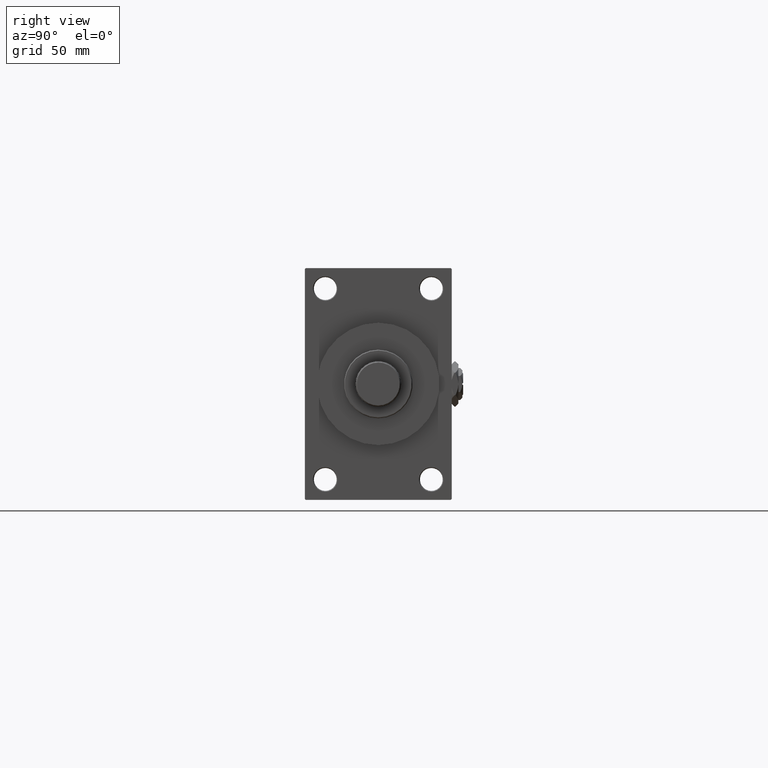
[diagram: clean part render]
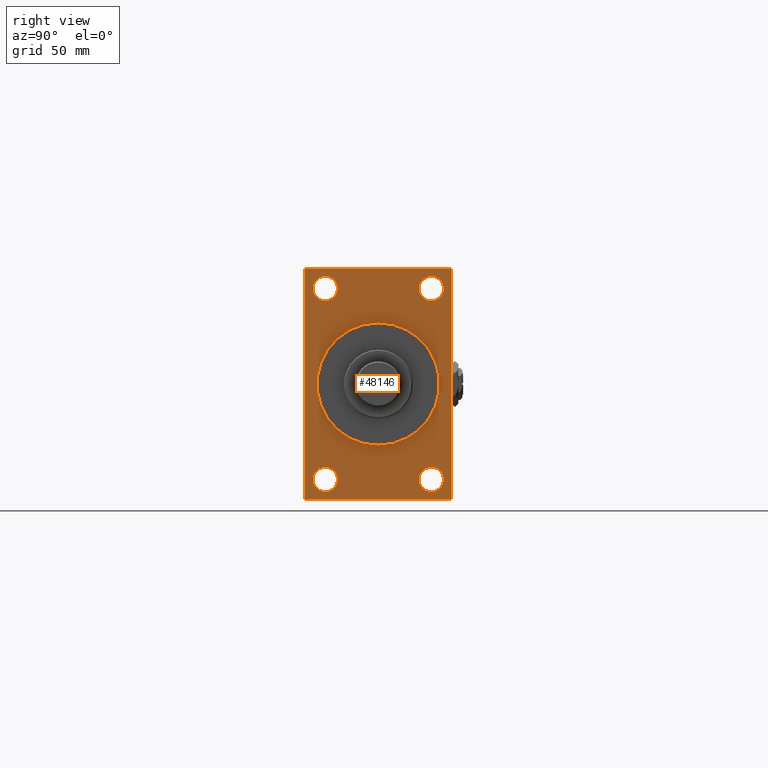
[diagram: same view with one face highlighted and labeled with its STEP entity id]
A machine part, right view. The second image highlights one B-rep face of the part: STEP entity #48146.
In plain terms, the highlighted planar face has unit normal (-1, 0, 0).
Its self-contained STEP definition (entity closure, byte-faithful):
#25 = VECTOR ( 'NONE', #15947, 999.9999999999998863 ) ;
#240 = DIRECTION ( 'NONE',  ( -0.000000000000000000, 0.7071067811865376918, 0.7071067811865573427 ) ) ;
#543 = ORIENTED_EDGE ( 'NONE', *, *, #27167, .T. ) ;
#583 = CARTESIAN_POINT ( 'NONE',  ( 322.9999999999999432, 32.50000000000000711, 58.50000000000000711 ) ) ;
#770 = ORIENTED_EDGE ( 'NONE', *, *, #8300, .F. ) ;
#780 = CIRCLE ( 'NONE', #4762, 7.500000000000062172 ) ;
#947 = AXIS2_PLACEMENT_3D ( 'NONE', #583, #31256, #16921 ) ;
#1097 = VERTEX_POINT ( 'NONE', #4188 ) ;
#1545 = CARTESIAN_POINT ( 'NONE',  ( 322.9999999999999432, -32.50000000000000000, 58.50000000000000711 ) ) ;
#2002 = EDGE_CURVE ( 'NONE', #12858, #4299, #15018, .T. ) ;
#2163 = DIRECTION ( 'NONE',  ( -1.000000000000000000, 0.000000000000000000, -0.000000000000000000 ) ) ;
#2410 = CARTESIAN_POINT ( 'NONE',  ( 322.9999999999999432, -44.50000000000002842, -71.00000000000000000 ) ) ;
#3467 = EDGE_CURVE ( 'NONE', #48340, #46414, #9471, .T. ) ;
#3908 = DIRECTION ( 'NONE',  ( 0.000000000000000000, 0.000000000000000000, 1.000000000000000000 ) ) ;
#3985 = CIRCLE ( 'NONE', #33692, 7.500000000000047962 ) ;
#4188 = CARTESIAN_POINT ( 'NONE',  ( 322.9999999999999432, 45.00000000000002132, 70.50000000000000000 ) ) ;
#4299 = VERTEX_POINT ( 'NONE', #42008 ) ;
#4362 = VERTEX_POINT ( 'NONE', #5025 ) ;
#4517 = CARTESIAN_POINT ( 'NONE',  ( 322.9999999999999432, 32.50000000000000711, -58.50000000000000000 ) ) ;
#4762 = AXIS2_PLACEMENT_3D ( 'NONE', #16871, #28429, #20880 ) ;
#5025 = CARTESIAN_POINT ( 'NONE',  ( 322.9999999999999432, -32.50000000000000000, 50.99999999999996447 ) ) ;
#5033 = DIRECTION ( 'NONE',  ( 0.000000000000000000, 0.000000000000000000, 1.000000000000000000 ) ) ;
#5209 = DIRECTION ( 'NONE',  ( 0.000000000000000000, 0.000000000000000000, 1.000000000000000000 ) ) ;
#5903 = CARTESIAN_POINT ( 'NONE',  ( 322.9999999999999432, 0.000000000000000000, 37.50000000000000711 ) ) ;
#7221 = VECTOR ( 'NONE', #37634, 1000.000000000000114 ) ;
#7236 = AXIS2_PLACEMENT_3D ( 'NONE', #46351, #23420, #45846 ) ;
#7356 = ORIENTED_EDGE ( 'NONE', *, *, #40576, .T. ) ;
#8300 = EDGE_CURVE ( 'NONE', #21506, #24416, #47475, .T. ) ;
#8410 = EDGE_CURVE ( 'NONE', #40885, #4362, #35386, .T. ) ;
#8516 = ORIENTED_EDGE ( 'NONE', *, *, #12810, .T. ) ;
#8691 = CARTESIAN_POINT ( 'NONE',  ( 322.9999999999999432, 32.50000000000000711, -66.00000000000005684 ) ) ;
#8786 = DIRECTION ( 'NONE',  ( -1.000000000000000000, 0.000000000000000000, -0.000000000000000000 ) ) ;
#8938 = VERTEX_POINT ( 'NONE', #8691 ) ;
#9056 = DIRECTION ( 'NONE',  ( 0.000000000000000000, 0.000000000000000000, 1.000000000000000000 ) ) ;
#9094 = AXIS2_PLACEMENT_3D ( 'NONE', #24632, #27896, #9056 ) ;
#9471 = LINE ( 'NONE', #2410, #10298 ) ;
#9984 = DIRECTION ( 'NONE',  ( 0.000000000000000000, -1.000000000000000000, -1.541976423090495387E-16 ) ) ;
#10298 = VECTOR ( 'NONE', #40423, 999.9999999999998863 ) ;
#11106 = VERTEX_POINT ( 'NONE', #13149 ) ;
#12015 = CARTESIAN_POINT ( 'NONE',  ( 322.9999999999999432, -32.50000000000000000, -66.00000000000004263 ) ) ;
#12093 = AXIS2_PLACEMENT_3D ( 'NONE', #46508, #38443, #34168 ) ;
#12203 = PLANE ( 'NONE',  #40273 ) ;
#12304 = CARTESIAN_POINT ( 'NONE',  ( 322.9999999999999432, 45.00000000000001421, -70.50000000000001421 ) ) ;
#12805 = EDGE_CURVE ( 'NONE', #23159, #46414, #42464, .T. ) ;
#12810 = EDGE_CURVE ( 'NONE', #4299, #12858, #24152, .T. ) ;
#12858 = VERTEX_POINT ( 'NONE', #12015 ) ;
#12906 = CARTESIAN_POINT ( 'NONE',  ( 322.9999999999999432, -32.50000000000000000, 66.00000000000005684 ) ) ;
#12963 = VECTOR ( 'NONE', #9984, 1000.000000000000000 ) ;
#13149 = CARTESIAN_POINT ( 'NONE',  ( 322.9999999999999432, -44.99999999999997158, 70.50000000000002842 ) ) ;
#13824 = CARTESIAN_POINT ( 'NONE',  ( 322.9999999999999432, -44.99999999999997158, 70.99999999999998579 ) ) ;
#14523 = ORIENTED_EDGE ( 'NONE', *, *, #2002, .T. ) ;
#14680 = ORIENTED_EDGE ( 'NONE', *, *, #49049, .T. ) ;
#14713 = LINE ( 'NONE', #45663, #7221 ) ;
#14786 = FACE_BOUND ( 'NONE', #41774, .T. ) ;
#15018 = CIRCLE ( 'NONE', #45576, 7.500000000000055067 ) ;
#15665 = ORIENTED_EDGE ( 'NONE', *, *, #41362, .T. ) ;
#15722 = ORIENTED_EDGE ( 'NONE', *, *, #47411, .T. ) ;
#15947 = DIRECTION ( 'NONE',  ( -0.000000000000000000, -0.7071067811865425767, -0.7071067811865525687 ) ) ;
#16510 = EDGE_CURVE ( 'NONE', #11106, #48340, #29158, .T. ) ;
#16871 = CARTESIAN_POINT ( 'NONE',  ( 322.9999999999999432, 32.50000000000000711, -58.50000000000000000 ) ) ;
#16921 = DIRECTION ( 'NONE',  ( 0.000000000000000000, 0.000000000000000000, 1.000000000000000000 ) ) ;
#17140 = CIRCLE ( 'NONE', #9094, 7.500000000000047962 ) ;
#17526 = CARTESIAN_POINT ( 'NONE',  ( 322.9999999999999432, 4.592425496802575156E-15, -37.50000000000000711 ) ) ;
#18058 = CARTESIAN_POINT ( 'NONE',  ( 322.9999999999999432, 44.50000000000006395, -70.99999999999998579 ) ) ;
#18528 = VECTOR ( 'NONE', #44530, 1000.000000000000000 ) ;
#18632 = ORIENTED_EDGE ( 'NONE', *, *, #8410, .T. ) ;
#18794 = AXIS2_PLACEMENT_3D ( 'NONE', #4517, #8786, #5033 ) ;
#18802 = FACE_BOUND ( 'NONE', #42037, .T. ) ;
#19134 = CIRCLE ( 'NONE', #48914, 37.50000000000000711 ) ;
#19329 = ORIENTED_EDGE ( 'NONE', *, *, #16510, .T. ) ;
#19927 = CARTESIAN_POINT ( 'NONE',  ( 322.9999999999999432, 44.50000000000002132, 71.00000000000000000 ) ) ;
#20211 = LINE ( 'NONE', #23730, #25 ) ;
#20375 = CARTESIAN_POINT ( 'NONE',  ( 322.9999999999999432, 32.50000000000000711, 50.99999999999996447 ) ) ;
#20880 = DIRECTION ( 'NONE',  ( 0.000000000000000000, 0.000000000000000000, 1.000000000000000000 ) ) ;
#21506 = VERTEX_POINT ( 'NONE', #17526 ) ;
#21867 = EDGE_CURVE ( 'NONE', #33906, #49434, #49145, .T. ) ;
#21937 = CARTESIAN_POINT ( 'NONE',  ( 322.9999999999999432, 0.000000000000000000, 0.000000000000000000 ) ) ;
#22028 = LINE ( 'NONE', #48497, #12963 ) ;
#22803 = FACE_BOUND ( 'NONE', #42537, .T. ) ;
#22939 = VERTEX_POINT ( 'NONE', #30728 ) ;
#23009 = CARTESIAN_POINT ( 'NONE',  ( 322.9999999999999432, 32.50000000000000711, 58.50000000000000711 ) ) ;
#23061 = DIRECTION ( 'NONE',  ( 0.000000000000000000, -1.000000000000000000, -1.541976423090495633E-16 ) ) ;
#23144 = VERTEX_POINT ( 'NONE', #34140 ) ;
#23159 = VERTEX_POINT ( 'NONE', #18058 ) ;
#23356 = LINE ( 'NONE', #12304, #36479 ) ;
#23420 = DIRECTION ( 'NONE',  ( 1.000000000000000000, 0.000000000000000000, 0.000000000000000000 ) ) ;
#23730 = CARTESIAN_POINT ( 'NONE',  ( 322.9999999999999432, -44.99999999999997158, 70.50000000000002842 ) ) ;
#24152 = CIRCLE ( 'NONE', #12093, 7.500000000000055067 ) ;
#24416 = VERTEX_POINT ( 'NONE', #5903 ) ;
#24452 = VECTOR ( 'NONE', #35554, 1000.000000000000000 ) ;
#24632 = CARTESIAN_POINT ( 'NONE',  ( 322.9999999999999432, -32.50000000000000000, 58.50000000000000711 ) ) ;
#24989 = DIRECTION ( 'NONE',  ( 0.000000000000000000, 0.000000000000000000, -1.000000000000000000 ) ) ;
#25046 = EDGE_CURVE ( 'NONE', #4362, #40885, #17140, .T. ) ;
#26987 = EDGE_LOOP ( 'NONE', ( #14523, #8516 ) ) ;
#27167 = EDGE_CURVE ( 'NONE', #23159, #27300, #23356, .T. ) ;
#27300 = VERTEX_POINT ( 'NONE', #28384 ) ;
#27329 = ORIENTED_EDGE ( 'NONE', *, *, #46724, .T. ) ;
#27896 = DIRECTION ( 'NONE',  ( -1.000000000000000000, 0.000000000000000000, -0.000000000000000000 ) ) ;
#28229 = CARTESIAN_POINT ( 'NONE',  ( 322.9999999999999432, 45.00000000000002132, 71.00000000000000000 ) ) ;
#28384 = CARTESIAN_POINT ( 'NONE',  ( 322.9999999999999432, 45.00000000000001421, -70.50000000000001421 ) ) ;
#28429 = DIRECTION ( 'NONE',  ( -1.000000000000000000, 0.000000000000000000, -0.000000000000000000 ) ) ;
#28581 = EDGE_CURVE ( 'NONE', #1097, #27300, #44093, .T. ) ;
#28623 = EDGE_LOOP ( 'NONE', ( #19329, #48819, #29720, #543, #46344, #15722, #14680, #27329 ) ) ;
#29158 = LINE ( 'NONE', #13824, #18528 ) ;
#29174 = ORIENTED_EDGE ( 'NONE', *, *, #21867, .T. ) ;
#29720 = ORIENTED_EDGE ( 'NONE', *, *, #12805, .F. ) ;
#30129 = FACE_BOUND ( 'NONE', #26987, .T. ) ;
#30352 = CARTESIAN_POINT ( 'NONE',  ( 322.9999999999999432, 32.50000000000000711, 66.00000000000005684 ) ) ;
#30365 = CARTESIAN_POINT ( 'NONE',  ( 322.9999999999999432, 0.000000000000000000, 0.000000000000000000 ) ) ;
#30728 = CARTESIAN_POINT ( 'NONE',  ( 322.9999999999999432, -44.50000000000000711, 70.99999999999998579 ) ) ;
#31131 = EDGE_CURVE ( 'NONE', #8938, #23144, #34913, .T. ) ;
#31256 = DIRECTION ( 'NONE',  ( -1.000000000000000000, 0.000000000000000000, -0.000000000000000000 ) ) ;
#33692 = AXIS2_PLACEMENT_3D ( 'NONE', #23009, #38392, #3908 ) ;
#33906 = VERTEX_POINT ( 'NONE', #30352 ) ;
#34140 = CARTESIAN_POINT ( 'NONE',  ( 322.9999999999999432, 32.50000000000000711, -50.99999999999993605 ) ) ;
#34168 = DIRECTION ( 'NONE',  ( 0.000000000000000000, 0.000000000000000000, 1.000000000000000000 ) ) ;
#34913 = CIRCLE ( 'NONE', #18794, 7.500000000000062172 ) ;
#35259 = DIRECTION ( 'NONE',  ( 0.000000000000000000, 0.000000000000000000, 1.000000000000000000 ) ) ;
#35386 = CIRCLE ( 'NONE', #43443, 7.500000000000047962 ) ;
#35554 = DIRECTION ( 'NONE',  ( 0.000000000000000000, -4.886545002751570165E-17, -1.000000000000000000 ) ) ;
#35585 = ORIENTED_EDGE ( 'NONE', *, *, #42496, .F. ) ;
#36316 = ORIENTED_EDGE ( 'NONE', *, *, #25046, .T. ) ;
#36479 = VECTOR ( 'NONE', #240, 1000.000000000000114 ) ;
#36755 = ORIENTED_EDGE ( 'NONE', *, *, #31131, .T. ) ;
#36826 = DIRECTION ( 'NONE',  ( 1.000000000000000000, 0.000000000000000000, 0.000000000000000000 ) ) ;
#37462 = DIRECTION ( 'NONE',  ( -0.000000000000000000, 0.000000000000000000, 1.000000000000000000 ) ) ;
#37634 = DIRECTION ( 'NONE',  ( 0.000000000000000000, -0.7071067811865474617, 0.7071067811865474617 ) ) ;
#37702 = FACE_BOUND ( 'NONE', #38233, .T. ) ;
#37956 = CARTESIAN_POINT ( 'NONE',  ( 322.9999999999999432, 45.00000000000001421, -70.99999999999998579 ) ) ;
#38233 = EDGE_LOOP ( 'NONE', ( #35585, #770 ) ) ;
#38392 = DIRECTION ( 'NONE',  ( -1.000000000000000000, 0.000000000000000000, -0.000000000000000000 ) ) ;
#38443 = DIRECTION ( 'NONE',  ( -1.000000000000000000, 0.000000000000000000, -0.000000000000000000 ) ) ;
#40066 = VERTEX_POINT ( 'NONE', #19927 ) ;
#40273 = AXIS2_PLACEMENT_3D ( 'NONE', #30365, #45736, #37462 ) ;
#40423 = DIRECTION ( 'NONE',  ( 0.000000000000000000, 0.7071067811865574537, -0.7071067811865376918 ) ) ;
#40576 = EDGE_CURVE ( 'NONE', #49434, #33906, #3985, .T. ) ;
#40885 = VERTEX_POINT ( 'NONE', #12906 ) ;
#41362 = EDGE_CURVE ( 'NONE', #23144, #8938, #780, .T. ) ;
#41774 = EDGE_LOOP ( 'NONE', ( #36755, #15665 ) ) ;
#42008 = CARTESIAN_POINT ( 'NONE',  ( 322.9999999999999432, -32.50000000000000000, -50.99999999999992895 ) ) ;
#42037 = EDGE_LOOP ( 'NONE', ( #7356, #29174 ) ) ;
#42432 = CARTESIAN_POINT ( 'NONE',  ( 322.9999999999999432, -44.50000000000000000, -71.00000000000000000 ) ) ;
#42464 = LINE ( 'NONE', #37956, #45076 ) ;
#42496 = EDGE_CURVE ( 'NONE', #24416, #21506, #19134, .T. ) ;
#42537 = EDGE_LOOP ( 'NONE', ( #36316, #18632 ) ) ;
#43443 = AXIS2_PLACEMENT_3D ( 'NONE', #1545, #47095, #35259 ) ;
#44093 = LINE ( 'NONE', #28229, #24452 ) ;
#44530 = DIRECTION ( 'NONE',  ( 0.000000000000000000, 0.000000000000000000, -1.000000000000000000 ) ) ;
#45076 = VECTOR ( 'NONE', #23061, 1000.000000000000000 ) ;
#45576 = AXIS2_PLACEMENT_3D ( 'NONE', #47739, #2163, #5209 ) ;
#45663 = CARTESIAN_POINT ( 'NONE',  ( 322.9999999999999432, 44.50000000000002132, 71.00000000000000000 ) ) ;
#45736 = DIRECTION ( 'NONE',  ( -1.000000000000000000, 0.000000000000000000, -0.000000000000000000 ) ) ;
#45846 = DIRECTION ( 'NONE',  ( 0.000000000000000000, 0.000000000000000000, -1.000000000000000000 ) ) ;
#46344 = ORIENTED_EDGE ( 'NONE', *, *, #28581, .F. ) ;
#46351 = CARTESIAN_POINT ( 'NONE',  ( 322.9999999999999432, 0.000000000000000000, 0.000000000000000000 ) ) ;
#46414 = VERTEX_POINT ( 'NONE', #42432 ) ;
#46508 = CARTESIAN_POINT ( 'NONE',  ( 322.9999999999999432, -32.50000000000000000, -58.49999999999999289 ) ) ;
#46724 = EDGE_CURVE ( 'NONE', #22939, #11106, #20211, .T. ) ;
#47095 = DIRECTION ( 'NONE',  ( -1.000000000000000000, 0.000000000000000000, -0.000000000000000000 ) ) ;
#47411 = EDGE_CURVE ( 'NONE', #1097, #40066, #14713, .T. ) ;
#47475 = CIRCLE ( 'NONE', #7236, 37.50000000000000711 ) ;
#47739 = CARTESIAN_POINT ( 'NONE',  ( 322.9999999999999432, -32.50000000000000000, -58.49999999999999289 ) ) ;
#48146 = ADVANCED_FACE ( 'NONE', ( #22803, #30129, #14786, #18802, #37702, #49512 ), #12203, .F. ) ;
#48340 = VERTEX_POINT ( 'NONE', #48428 ) ;
#48428 = CARTESIAN_POINT ( 'NONE',  ( 322.9999999999999432, -44.99999999999997158, -70.50000000000005684 ) ) ;
#48497 = CARTESIAN_POINT ( 'NONE',  ( 322.9999999999999432, 45.00000000000002132, 71.00000000000000000 ) ) ;
#48819 = ORIENTED_EDGE ( 'NONE', *, *, #3467, .T. ) ;
#48914 = AXIS2_PLACEMENT_3D ( 'NONE', #21937, #36826, #24989 ) ;
#49049 = EDGE_CURVE ( 'NONE', #40066, #22939, #22028, .T. ) ;
#49145 = CIRCLE ( 'NONE', #947, 7.500000000000047962 ) ;
#49434 = VERTEX_POINT ( 'NONE', #20375 ) ;
#49512 = FACE_OUTER_BOUND ( 'NONE', #28623, .T. ) ;